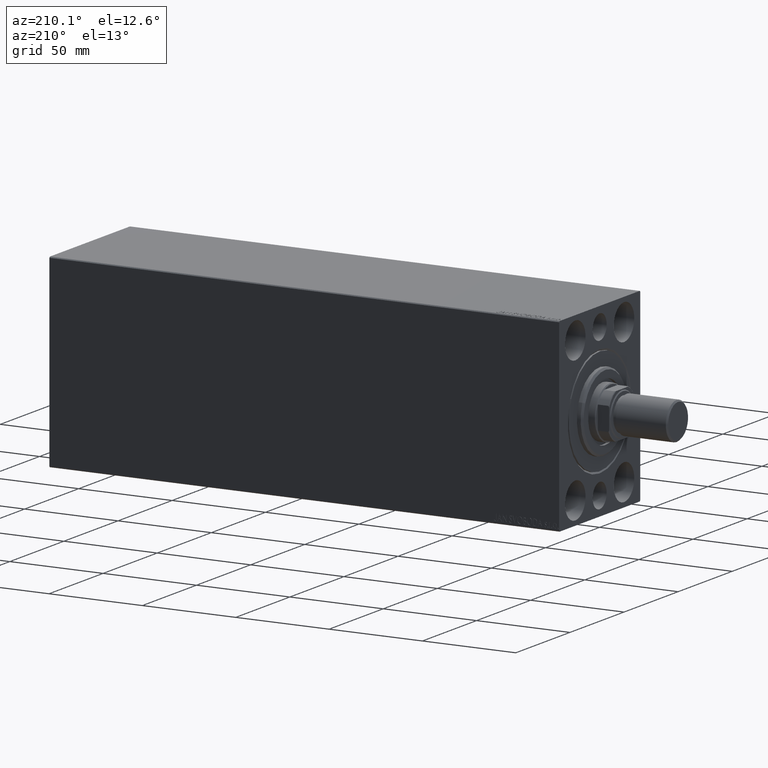
[diagram: clean part render]
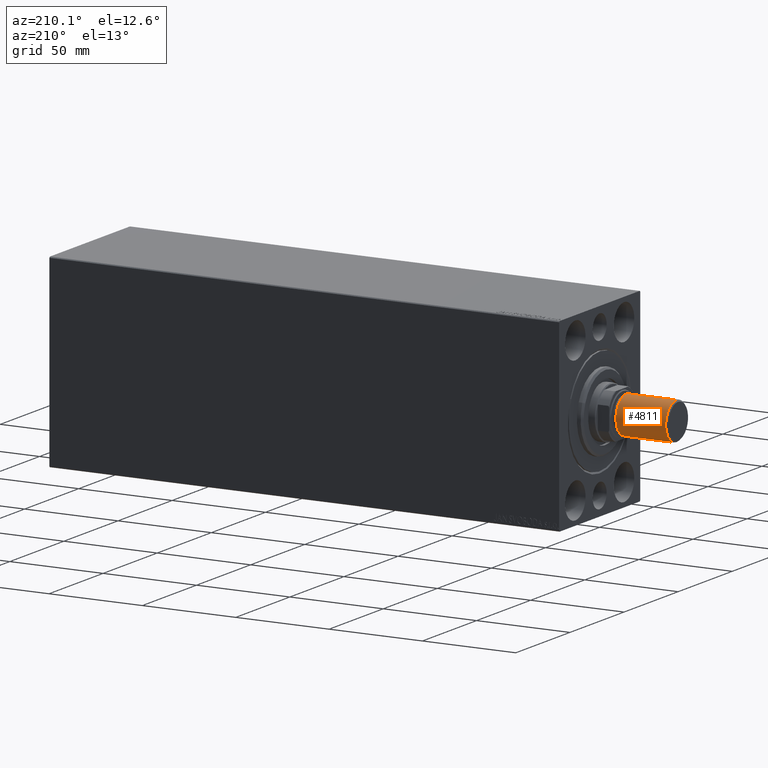
[diagram: same view with one face highlighted and labeled with its STEP entity id]
A machine part, auxiliary view. The second image highlights one B-rep face of the part: STEP entity #4811.
In plain terms, the highlighted cylindrical surface (edge-blend (fillet) strip) has radius 10 mm, axis along (-1, -0, 0).
Its self-contained STEP definition (entity closure, byte-faithful):
#140 = AXIS2_PLACEMENT_3D ( 'NONE', #40535, #13014, #36951 ) ;
#840 = LINE ( 'NONE', #35298, #37834 ) ;
#2757 = ORIENTED_EDGE ( 'NONE', *, *, #7349, .F. ) ;
#2904 = CARTESIAN_POINT ( 'NONE',  ( 0.000000000000000000, 0.000000000000000000, 27.50000000000000000 ) ) ;
#3692 = VERTEX_POINT ( 'NONE', #41193 ) ;
#4811 = ADVANCED_FACE ( 'NONE', ( #31103 ), #41409, .T. ) ;
#5676 = AXIS2_PLACEMENT_3D ( 'NONE', #23951, #40520, #26437 ) ;
#6329 = AXIS2_PLACEMENT_3D ( 'NONE', #2904, #17008, #10749 ) ;
#7349 = EDGE_CURVE ( 'NONE', #33356, #23627, #36420, .T. ) ;
#8024 = CIRCLE ( 'NONE', #140, 10.00000000000000000 ) ;
#10749 = DIRECTION ( 'NONE',  ( -1.000000000000000000, 0.000000000000000000, 0.000000000000000000 ) ) ;
#13014 = DIRECTION ( 'NONE',  ( -0.000000000000000000, -0.000000000000000000, 1.000000000000000000 ) ) ;
#14362 = EDGE_CURVE ( 'NONE', #34030, #3692, #8024, .T. ) ;
#15178 = VECTOR ( 'NONE', #23491, 1000.000000000000000 ) ;
#16110 = ORIENTED_EDGE ( 'NONE', *, *, #37816, .F. ) ;
#16194 = CARTESIAN_POINT ( 'NONE',  ( -10.00000000000000000, 0.000000000000000000, 27.50000000000000000 ) ) ;
#17008 = DIRECTION ( 'NONE',  ( -0.000000000000000000, -0.000000000000000000, -1.000000000000000000 ) ) ;
#19817 = ORIENTED_EDGE ( 'NONE', *, *, #25093, .T. ) ;
#22388 = ORIENTED_EDGE ( 'NONE', *, *, #14362, .T. ) ;
#23491 = DIRECTION ( 'NONE',  ( -0.000000000000000000, -0.000000000000000000, -1.000000000000000000 ) ) ;
#23627 = VERTEX_POINT ( 'NONE', #16194 ) ;
#23951 = CARTESIAN_POINT ( 'NONE',  ( 0.000000000000000000, 0.000000000000000000, 27.50000000000000000 ) ) ;
#25093 = EDGE_CURVE ( 'NONE', #33356, #34030, #840, .T. ) ;
#26437 = DIRECTION ( 'NONE',  ( 1.000000000000000000, 0.000000000000000000, 0.000000000000000000 ) ) ;
#26864 = CARTESIAN_POINT ( 'NONE',  ( -10.00000000000000000, 0.000000000000000000, 27.50000000000000000 ) ) ;
#31103 = FACE_OUTER_BOUND ( 'NONE', #34439, .T. ) ;
#31511 = DIRECTION ( 'NONE',  ( -0.000000000000000000, -0.000000000000000000, -1.000000000000000000 ) ) ;
#32129 = CARTESIAN_POINT ( 'NONE',  ( 10.00000000000000000, 1.224646799147353256E-15, 27.50000000000000000 ) ) ;
#33356 = VERTEX_POINT ( 'NONE', #32129 ) ;
#34030 = VERTEX_POINT ( 'NONE', #42578 ) ;
#34439 = EDGE_LOOP ( 'NONE', ( #2757, #19817, #22388, #16110 ) ) ;
#35298 = CARTESIAN_POINT ( 'NONE',  ( 10.00000000000000000, 1.224646799147353256E-15, 27.50000000000000000 ) ) ;
#36420 = CIRCLE ( 'NONE', #5676, 10.00000000000000000 ) ;
#36951 = DIRECTION ( 'NONE',  ( 1.000000000000000000, 0.000000000000000000, 0.000000000000000000 ) ) ;
#37816 = EDGE_CURVE ( 'NONE', #23627, #3692, #43875, .T. ) ;
#37834 = VECTOR ( 'NONE', #31511, 1000.000000000000000 ) ;
#40520 = DIRECTION ( 'NONE',  ( 0.000000000000000000, 0.000000000000000000, 1.000000000000000000 ) ) ;
#40535 = CARTESIAN_POINT ( 'NONE',  ( 0.000000000000000000, 0.000000000000000000, 0.7999999999999986011 ) ) ;
#41193 = CARTESIAN_POINT ( 'NONE',  ( -10.00000000000000000, 0.000000000000000000, 0.7999999999999986011 ) ) ;
#41409 = CYLINDRICAL_SURFACE ( 'NONE', #6329, 10.00000000000000000 ) ;
#42578 = CARTESIAN_POINT ( 'NONE',  ( 10.00000000000000000, 1.224646799147353256E-15, 0.7999999999999986011 ) ) ;
#43875 = LINE ( 'NONE', #26864, #15178 ) ;